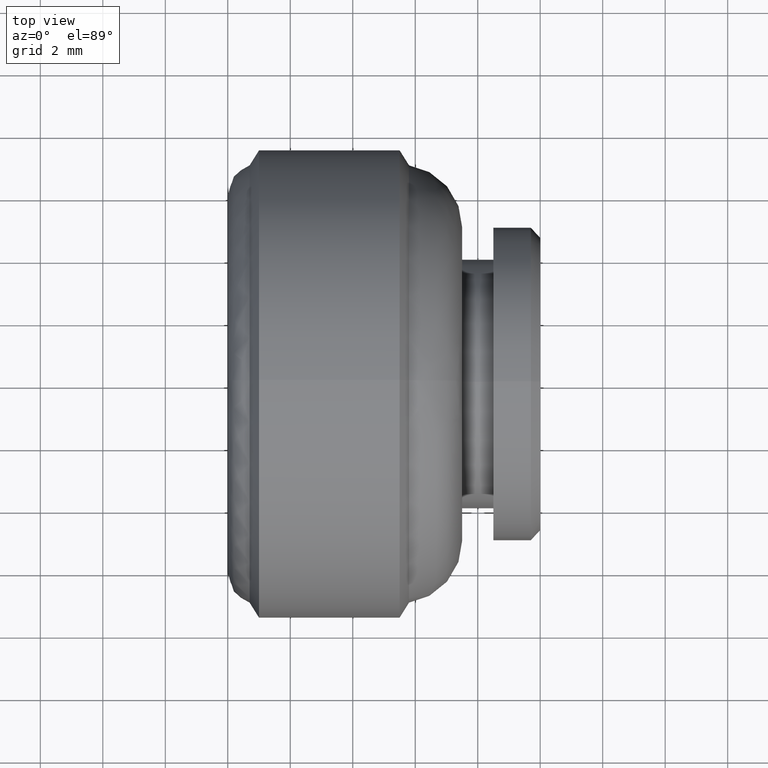
[diagram: clean part render]
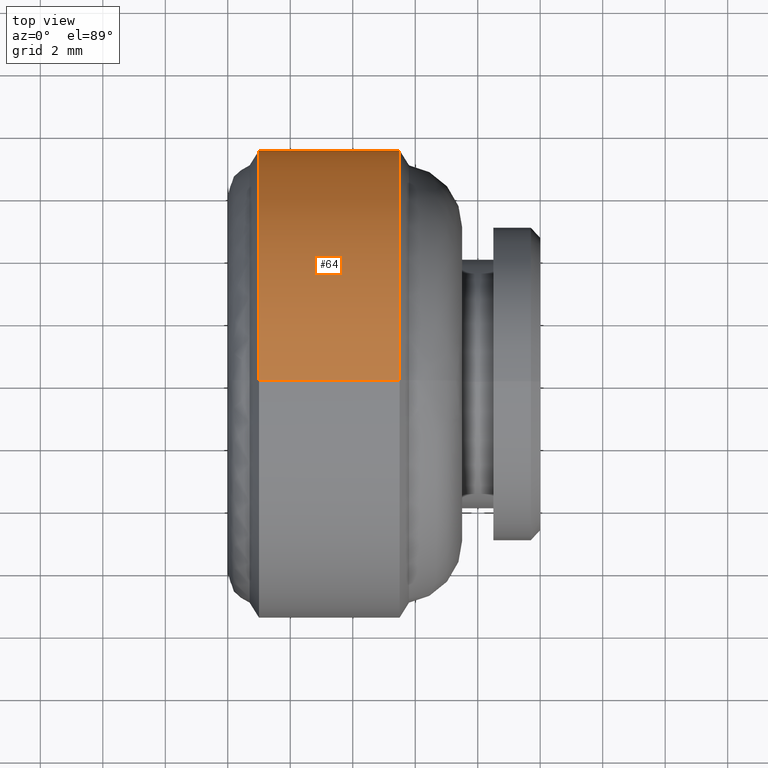
[diagram: same view with one face highlighted and labeled with its STEP entity id]
A machine part, top view. The second image highlights one B-rep face of the part: STEP entity #64.
In plain terms, the highlighted cylindrical surface (partial cylindrical patch) has radius 7.5 mm, axis along (1, -0, -0).
Its self-contained STEP definition (entity closure, byte-faithful):
#64=ADVANCED_FACE('',(#314),#313,.T.);
#313=CYLINDRICAL_SURFACE('',#601,7.50000000000E+00);
#314=FACE_OUTER_BOUND('',#602,.T.);
#598=CARTESIAN_POINT('',(0.00000000000E+00,0.00000000000E+00,0.00000000000E+00));
#599=DIRECTION('',(1.00000000000E+00,-0.00000000000E+00,-0.00000000000E+00));
#600=DIRECTION('',(0.00000000000E+00,0.00000000000E+00,-1.00000000000E+00));
#601=AXIS2_PLACEMENT_3D('',#598,#599,#600);
#602=EDGE_LOOP('',(#774,#775,#776,#777));
#774=ORIENTED_EDGE('',*,*,#845,.T.);
#775=ORIENTED_EDGE('',*,*,#846,.F.);
#776=ORIENTED_EDGE('',*,*,#847,.F.);
#777=ORIENTED_EDGE('',*,*,#848,.T.);
#845=EDGE_CURVE('',#1148,#1147,#1167,.T.);
#846=EDGE_CURVE('',#1173,#1147,#1174,.T.);
#847=EDGE_CURVE('',#1180,#1173,#1181,.T.);
#848=EDGE_CURVE('',#1180,#1148,#1187,.T.);
#1147=VERTEX_POINT('',#1408);
#1148=VERTEX_POINT('',#1409);
#1167=CIRCLE('',#1421,7.50000000000E+00);
#1173=VERTEX_POINT('',#1422);
#1174=(BOUNDED_CURVE() B_SPLINE_CURVE(1,(#1423,#1424),.UNSPECIFIED.,.F.,.F.) B_SPLINE_CURVE_WITH_KNOTS((2,2),(8.33333313467E-02,9.16666670832E-01),.UNSPECIFIED.) CURVE() GEOMETRIC_REPRESENTATION_ITEM() RATIONAL_B_SPLINE_CURVE((1.00000000000E+00,1.00000000000E+00)) REPRESENTATION_ITEM('') );
#1180=VERTEX_POINT('',#1425);
#1181=CIRCLE('',#1429,7.50000000000E+00);
#1187=(BOUNDED_CURVE() B_SPLINE_CURVE(1,(#1430,#1431),.UNSPECIFIED.,.F.,.F.) B_SPLINE_CURVE_WITH_KNOTS((2,2),(8.33333333333E-02,9.16666666667E-01),.UNSPECIFIED.) CURVE() GEOMETRIC_REPRESENTATION_ITEM() RATIONAL_B_SPLINE_CURVE((7.50000000000E-01,7.50000000000E-01)) REPRESENTATION_ITEM('') );
#1408=CARTESIAN_POINT('',(-4.50000000000E+00,5.92118946467E-16,-7.50000000000E+00));
#1409=CARTESIAN_POINT('',(-4.50000000000E+00,0.00000000000E+00,7.50000000000E+00));
#1418=CARTESIAN_POINT('',(-4.50000000000E+00,0.00000000000E+00,0.00000000000E+00));
#1419=DIRECTION('',(-1.00000000000E+00,0.00000000000E+00,0.00000000000E+00));
#1420=DIRECTION('',(0.00000000000E+00,-1.22460635382E-16,1.00000000000E+00));
#1421=AXIS2_PLACEMENT_3D('',#1418,#1419,#1420);
#1422=CARTESIAN_POINT('',(-9.00000000000E+00,5.92118946467E-16,-7.50000000000E+00));
#1423=CARTESIAN_POINT('',(-9.00000001073E+00,0.00000000000E+00,-7.50000000000E+00));
#1424=CARTESIAN_POINT('',(-4.49999997751E+00,0.00000000000E+00,-7.50000000000E+00));
#1425=CARTESIAN_POINT('',(-9.00000000000E+00,0.00000000000E+00,7.50000000000E+00));
#1426=CARTESIAN_POINT('',(-9.00000000000E+00,0.00000000000E+00,0.00000000000E+00));
#1427=DIRECTION('',(-1.00000000000E+00,0.00000000000E+00,0.00000000000E+00));
#1428=DIRECTION('',(0.00000000000E+00,-1.22460635382E-16,1.00000000000E+00));
#1429=AXIS2_PLACEMENT_3D('',#1426,#1427,#1428);
#1430=CARTESIAN_POINT('',(-9.00000000000E+00,-2.96059473233E-16,7.50000000000E+00));
#1431=CARTESIAN_POINT('',(-4.50000000000E+00,-2.96059473233E-16,7.50000000000E+00));